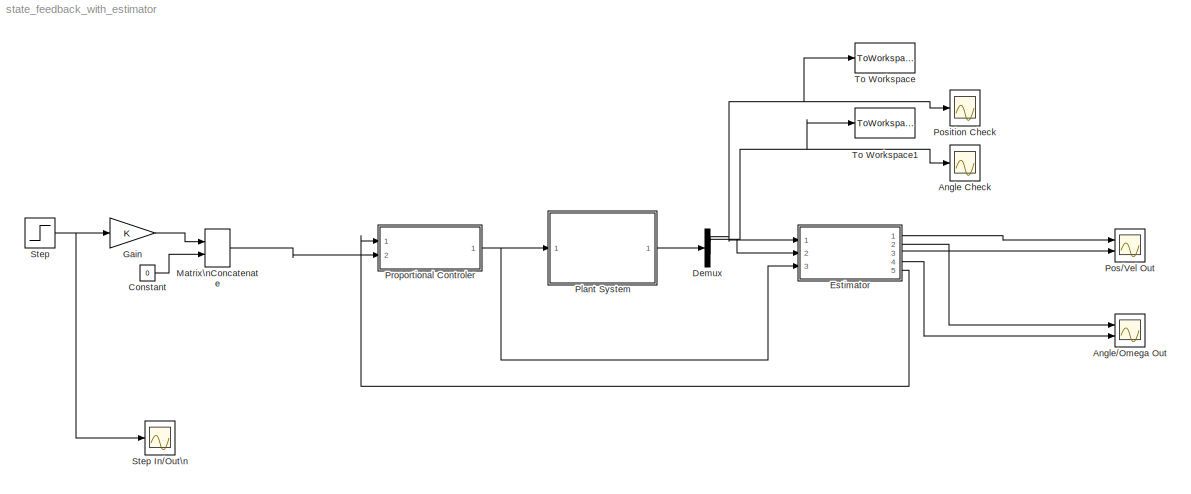
MODEL state_feedback_with_estimator
KIND model
BLOCK [Scope] Angle Check
  Ports = [1]
  SID = 94
  ScopeSpecificationString = Simulink.scopes.TimeScopeBlockCfg('CurrentConfiguration', extmgr.ConfigurationSet(extmgr.Configuration('Core','General UI',true),extmgr.Configuration('Core','Source UI',true),extmgr.Configuration('Sources','WiredSimulink',true,'DataLoggingVariableName','ScopeData3'),extmgr.Configuration('Visuals','Time Domain',true,'SerializedDisplays',{struct('MinYLimReal','-0.02534','MaxYLimReal','0.04823','YLab...<+1460ch>
BLOCK [Scope] Angle//Omega Out
  NumInputPorts = 2
  Ports = [2]
  SID = 10
  ScopeSpecificationString = Simulink.scopes.TimeScopeBlockCfg('CurrentConfiguration', extmgr.ConfigurationSet(extmgr.Configuration('Core','General UI',true),extmgr.Configuration('Core','Source UI',true),extmgr.Configuration('Sources','WiredSimulink',true,'DataLoggingLimitDataPoints',true,'DataLoggingSaveFormat','Array','DataLoggingDecimation','1','DataLoggingDecimateData',true,'DataLoggingVariableName','ScopeData1'),extmgr.C...<+1564ch>
BLOCK [Constant] Constant
  SID = 103
  Value = 0
BLOCK [Demux] Demux
  DisplayOption = bar
  Outputs = 2
  Ports = [1, 2]
  SID = 106
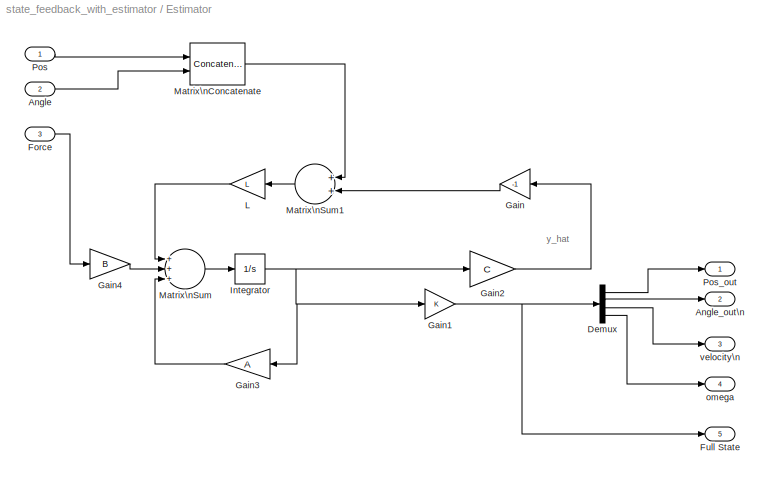
BLOCK [SubSystem] Estimator
  Ports = [3, 5]
  RequestExecContextInheritance = off
  SID = 45
  Variant = off
BLOCK [Inport] Estimator/Angle
  IconDisplay = Port number
  Port = 2
  SID = 48
BLOCK [Outport] Estimator/Angle_out\n
  IconDisplay = Port number
  Port = 2
  SID = 49
BLOCK [Demux] Estimator/Demux
  DisplayOption = bar
  Ports = [1, 4]
  SID = 70
BLOCK [Inport] Estimator/Force
  IconDisplay = Port number
  Port = 3
  SID = 55
BLOCK [Outport] Estimator/Full State
  IconDisplay = Port number
  Port = 5
  SID = 108
BLOCK [Gain] Estimator/Gain
  Gain = -1
  OutDataTypeStr = Inherit: Inherit via internal rule
  ParamDataTypeStr = Inherit: Inherit via internal rule
  SID = 58
  SaturateOnIntegerOverflow = off
BLOCK [Gain] Estimator/Gain1
  OutDataTypeStr = Inherit: Inherit via internal rule
  ParamDataTypeStr = Inherit: Inherit via internal rule
  SID = 89
  SaturateOnIntegerOverflow = off
BLOCK [Gain] Estimator/Gain2
  Gain = C
  Multiplication = Matrix(K*u)
  OutDataTypeStr = Inherit: Inherit via internal rule
  ParamDataTypeStr = Inherit: Inherit via internal rule
  SID = 72
  SaturateOnIntegerOverflow = off
BLOCK [Gain] Estimator/Gain3
  Gain = A
  Multiplication = Matrix(K*u)
  OutDataTypeStr = Inherit: Inherit via internal rule
  ParamDataTypeStr = Inherit: Inherit via internal rule
  SID = 73
  SaturateOnIntegerOverflow = off
BLOCK [Gain] Estimator/Gain4
  Gain = B
  Multiplication = Matrix(K*u)
  OutDataTypeStr = Inherit: Inherit via internal rule
  ParamDataTypeStr = Inherit: Inherit via internal rule
  SID = 74
  SaturateOnIntegerOverflow = off
BLOCK [Integrator] Estimator/Integrator
  Ports = [1, 1]
  SID = 65
BLOCK [Gain] Estimator/L
  Gain = L
  Multiplication = Matrix(K*u)
  OutDataTypeStr = Inherit: Inherit via internal rule
  ParamDataTypeStr = Inherit: Inherit via internal rule
  SID = 71
  SaturateOnIntegerOverflow = off
BLOCK [Concatenate] Estimator/Matrix\nConcatenate
  Mode = Multidimensional array
  Ports = [2, 1]
  SID = 78
BLOCK [Sum] Estimator/Matrix\nSum
  Inputs = +++|
  OutDataTypeStr = Inherit: Inherit via internal rule
  Ports = [3, 1]
  SID = 81
  SaturateOnIntegerOverflow = off
BLOCK [Sum] Estimator/Matrix\nSum1
  InputSameDT = off
  Inputs = ++|
  OutDataTypeStr = Inherit: Inherit via internal rule
  Ports = [2, 1]
  SID = 82
  SaturateOnIntegerOverflow = off
BLOCK [Inport] Estimator/Pos
  IconDisplay = Port number
  SID = 46
BLOCK [Outport] Estimator/Pos_out
  IconDisplay = Port number
  SID = 47
BLOCK [Outport] Estimator/omega
  IconDisplay = Port number
  Port = 4
  SID = 51
BLOCK [Outport] Estimator/velocity\n
  IconDisplay = Port number
  Port = 3
  SID = 50
BLOCK [Gain] Gain
  OutDataTypeStr = Inherit: Inherit via internal rule
  ParamDataTypeStr = Inherit: Inherit via internal rule
  SID = 90
  SaturateOnIntegerOverflow = off
BLOCK [Concatenate] Matrix\nConcatenate
  Mode = Multidimensional array
  Ports = [2, 1]
  SID = 101
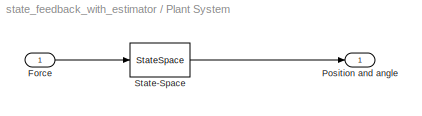
BLOCK [SubSystem] Plant System
  Ports = [1, 1]
  RequestExecContextInheritance = off
  SID = 12
  Variant = off
BLOCK [Inport] Plant System/Force
  IconDisplay = Port number
  SID = 13
BLOCK [Outport] Plant System/Position and angle
  IconDisplay = Port number
  SID = 100
BLOCK [StateSpace] Plant System/State-Space
  A = A
  B = B
  C = C
  D = D
  Ports = [1, 1]
  SID = 3
  X0 = [0;0;0;0]
BLOCK [Scope] Pos//Vel Out
  NumInputPorts = 2
  Ports = [2]
  SID = 8
  ScopeSpecificationString = Simulink.scopes.TimeScopeBlockCfg('CurrentConfiguration', extmgr.ConfigurationSet(extmgr.Configuration('Core','General UI',true),extmgr.Configuration('Core','Source UI',true),extmgr.Configuration('Sources','WiredSimulink',true,'DataLoggingLimitDataPoints',true,'DataLoggingSaveFormat','Array','DataLoggingDecimation','1','DataLoggingDecimateData',true),extmgr.Configuration('Visuals','Time Domain',tr...<+1523ch>
BLOCK [Scope] Position Check
  Ports = [1]
  SID = 91
  ScopeSpecificationString = Simulink.scopes.TimeScopeBlockCfg('CurrentConfiguration', extmgr.ConfigurationSet(extmgr.Configuration('Core','General UI',true),extmgr.Configuration('Core','Source UI',true),extmgr.Configuration('Sources','WiredSimulink',true,'DataLoggingVariableName','ScopeData2'),extmgr.Configuration('Visuals','Time Domain',true,'SerializedDisplays',{struct('MinYLimReal','-0.13332','MaxYLimReal','1.12571','YLab...<+1460ch>
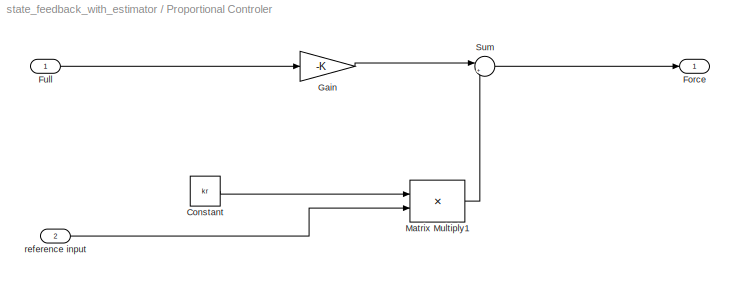
BLOCK [SubSystem] Proportional Controler
  Ports = [2, 1]
  RequestExecContextInheritance = off
  SID = 31
  Variant = off
BLOCK [Constant] Proportional Controler/Constant
  SID = 76
  Value = kr
  VectorParams1D = off
BLOCK [Outport] Proportional Controler/Force
  IconDisplay = Port number
  SID = 33
BLOCK [Inport] Proportional Controler/Full
  IconDisplay = Port number
  SID = 32
BLOCK [Gain] Proportional Controler/Gain
  Gain = -K
  Multiplication = Matrix(K*u)
  OutDataTypeStr = Inherit: Inherit via internal rule
  ParamDataTypeStr = Inherit: Inherit via internal rule
  SID = 75
  SaturateOnIntegerOverflow = off
BLOCK [Product] Proportional Controler/Matrix Multiply1
  InputSameDT = off
  Multiplication = Matrix(*)
  OutDataTypeStr = Inherit: Inherit via internal rule
  Ports = [2, 1]
  RndMeth = Floor
  SID = 43
  SaturateOnIntegerOverflow = off
BLOCK [Sum] Proportional Controler/Sum
  IconShape = round
  InputSameDT = off
  Inputs = |++
  OutDataTypeStr = Inherit: Inherit via internal rule
  Ports = [2, 1]
  SID = 41
  SaturateOnIntegerOverflow = off
BLOCK [Inport] Proportional Controler/reference input
  IconDisplay = Port number
  Port = 2
  SID = 107
BLOCK [Step] Step
  SID = 1
  SampleTime = 0
BLOCK [Scope] Step In//Out\n
  Ports = [1]
  SID = 5
  ScopeSpecificationString = Simulink.scopes.TimeScopeBlockCfg('CurrentConfiguration', extmgr.ConfigurationSet(extmgr.Configuration('Core','General UI',true),extmgr.Configuration('Core','Source UI',true),extmgr.Configuration('Sources','WiredSimulink',true,'DataLoggingVariableName','ScopeData1'),extmgr.Configuration('Visuals','Time Domain',true,'SerializedDisplays',{struct('MinYLimReal','-0.125','MaxYLimReal','1.125','YLabelRe...<+1418ch>
BLOCK [ToWorkspace] To Workspace
  FixptAsFi = on
  MaxDataPoints = inf
  Ports = [1]
  SID = 109
  SampleTime = -1
  Save2DSignal = 2-D array (concatenate along first dimension)
  SaveFormat = Timeseries
  VariableName = x_out
BLOCK [ToWorkspace] To Workspace1
  FixptAsFi = on
  MaxDataPoints = inf
  Ports = [1]
  SID = 110
  SampleTime = -1
  Save2DSignal = 2-D array (concatenate along first dimension)
  SaveFormat = Timeseries
  VariableName = theta_out
ANNOTATION Estimator: \n \n y_hat
LINE Constant:1 -> Matrix\nConcatenate:2
NET Demux:1 -> Estimator:1, Position Check:1, To Workspace:1
NET Demux:2 -> Angle Check:1, Estimator:2, To Workspace1:1
LINE Estimator/Angle:1 -> Estimator/Matrix\nConcatenate:2
LINE Estimator/Demux:1 -> Estimator/Pos_out:1
LINE Estimator/Demux:2 -> Estimator/Angle_out\n:1
LINE Estimator/Demux:3 -> Estimator/velocity\n:1
LINE Estimator/Demux:4 -> Estimator/omega:1
LINE Estimator/Force:1 -> Estimator/Gain4:1
NET Estimator/Gain1:1 -> Estimator/Demux:1, Estimator/Full State:1
LINE Estimator/Gain2:1 -> Estimator/Gain:1
LINE Estimator/Gain3:1 -> Estimator/Matrix\nSum:3
LINE Estimator/Gain4:1 -> Estimator/Matrix\nSum:2
LINE Estimator/Gain:1 -> Estimator/Matrix\nSum1:2
NET Estimator/Integrator:1 -> Estimator/Gain1:1, Estimator/Gain2:1, Estimator/Gain3:1
LINE Estimator/L:1 -> Estimator/Matrix\nSum:1
LINE Estimator/Matrix\nConcatenate:1 -> Estimator/Matrix\nSum1:1
LINE Estimator/Matrix\nSum1:1 -> Estimator/L:1
LINE Estimator/Matrix\nSum:1 -> Estimator/Integrator:1
LINE Estimator/Pos:1 -> Estimator/Matrix\nConcatenate:1
LINE Estimator:1 -> Pos//Vel Out:1
LINE Estimator:2 -> Angle//Omega Out:1
LINE Estimator:3 -> Pos//Vel Out:2
LINE Estimator:4 -> Angle//Omega Out:2
LINE Estimator:5 -> Proportional Controler:1
LINE Gain:1 -> Matrix\nConcatenate:1
LINE Matrix\nConcatenate:1 -> Proportional Controler:2
LINE Plant System/Force:1 -> Plant System/State-Space:1
LINE Plant System/State-Space:1 -> Plant System/Position and angle:1
LINE Plant System:1 -> Demux:1
LINE Proportional Controler/Constant:1 -> Proportional Controler/Matrix Multiply1:1
LINE Proportional Controler/Full:1 -> Proportional Controler/Gain:1
LINE Proportional Controler/Gain:1 -> Proportional Controler/Sum:1
LINE Proportional Controler/Matrix Multiply1:1 -> Proportional Controler/Sum:2
LINE Proportional Controler/Sum:1 -> Proportional Controler/Force:1
LINE Proportional Controler/reference input:1 -> Proportional Controler/Matrix Multiply1:2
NET Proportional Controler:1 -> Estimator:3, Plant System:1
NET Step:1 -> Gain:1, Step In//Out\n:1
note: NET lines group one-source signal fan-out (src -> all destinations, sorted); 1:1 wires keep LINE
